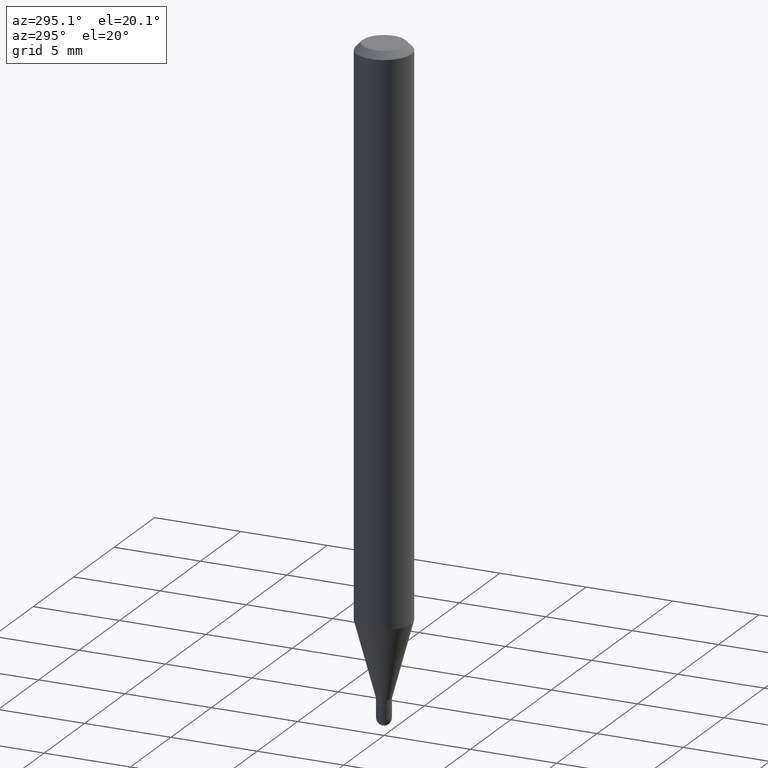
[diagram: clean part render]
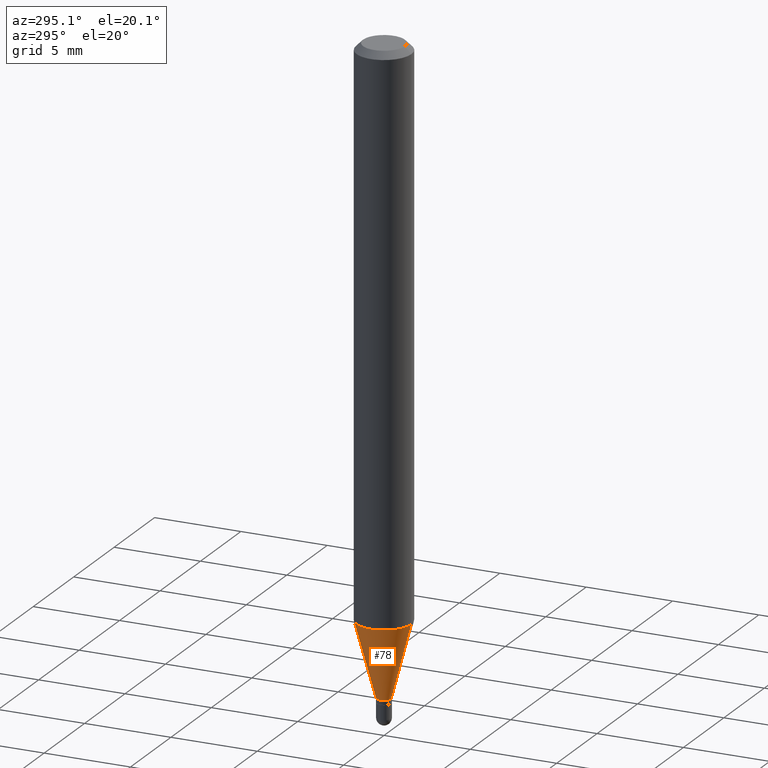
[diagram: same view with one face highlighted and labeled with its STEP entity id]
A machine part, auxiliary view. The second image highlights one B-rep face of the part: STEP entity #78.
In plain terms, the highlighted conical surface has half-angle 15 deg.
Its self-contained STEP definition (entity closure, byte-faithful):
#10 = CARTESIAN_POINT ( 'NONE',  ( 2.806643806252725111E-16, 0.01649999999999489375, -1.440000000000000169 ) ) ;
#13 = ORIENTED_EDGE ( 'NONE', *, *, #111, .F. ) ;
#35 = DIRECTION ( 'NONE',  ( 1.839019923739605048E-15, 0.2588190451025256245, 0.9659258262890669799 ) ) ;
#44 = EDGE_CURVE ( 'NONE', #450, #412, #328, .T. ) ;
#65 = DIRECTION ( 'NONE',  ( -2.445479794674199112E-29, 3.491465602701382301E-15, 1.000000000000000000 ) ) ;
#66 = LINE ( 'NONE', #390, #337 ) ;
#68 = EDGE_CURVE ( 'NONE', #450, #102, #66, .T. ) ;
#78 = ADVANCED_FACE ( 'NONE', ( #223 ), #499, .T. ) ;
#88 = VERTEX_POINT ( 'NONE', #418 ) ;
#102 = VERTEX_POINT ( 'NONE', #422 ) ;
#107 = CIRCLE ( 'NONE', #191, 0.06250000000000000000 ) ;
#111 = EDGE_CURVE ( 'NONE', #102, #88, #107, .T. ) ;
#154 = CARTESIAN_POINT ( 'NONE',  ( 3.101664781570917054E-29, -4.428315424870604109E-15, -1.268325662851832680 ) ) ;
#173 = CARTESIAN_POINT ( 'NONE',  ( -1.152188841817876318E-16, -0.01650000000000495168, -1.440000000000000169 ) ) ;
#178 = ORIENTED_EDGE ( 'NONE', *, *, #68, .F. ) ;
#180 = AXIS2_PLACEMENT_3D ( 'NONE', #503, #233, #264 ) ;
#191 = AXIS2_PLACEMENT_3D ( 'NONE', #154, #65, #502 ) ;
#192 = VECTOR ( 'NONE', #330, 39.37007874015748854 ) ;
#223 = FACE_OUTER_BOUND ( 'NONE', #327, .T. ) ;
#233 = DIRECTION ( 'NONE',  ( -2.445479794674199112E-29, 3.491465602701382301E-15, 1.000000000000000000 ) ) ;
#252 = ORIENTED_EDGE ( 'NONE', *, *, #44, .T. ) ;
#264 = DIRECTION ( 'NONE',  ( -6.982962677686265922E-15, -1.000000000000000000, 0.000000000000000000 ) ) ;
#269 = DIRECTION ( 'NONE',  ( -6.982962677686265922E-15, -1.000000000000000000, 0.000000000000000000 ) ) ;
#308 = AXIS2_PLACEMENT_3D ( 'NONE', #506, #383, #269 ) ;
#326 = LINE ( 'NONE', #335, #192 ) ;
#327 = EDGE_LOOP ( 'NONE', ( #178, #252, #395, #13 ) ) ;
#328 = CIRCLE ( 'NONE', #180, 0.01649999999999992445 ) ;
#330 = DIRECTION ( 'NONE',  ( -1.807323732225334872E-15, -0.2588190451025188521, 0.9659258262890687563 ) ) ;
#335 = CARTESIAN_POINT ( 'NONE',  ( -1.152188841817876318E-16, -0.01650000000000495168, -1.440000000000000169 ) ) ;
#337 = VECTOR ( 'NONE', #35, 39.37007874015748143 ) ;
#383 = DIRECTION ( 'NONE',  ( -2.445479794674199112E-29, 3.491465602701382301E-15, 1.000000000000000000 ) ) ;
#390 = CARTESIAN_POINT ( 'NONE',  ( 1.172395514004511721E-16, 0.01649999999999489375, -1.440000000000000169 ) ) ;
#395 = ORIENTED_EDGE ( 'NONE', *, *, #449, .T. ) ;
#412 = VERTEX_POINT ( 'NONE', #173 ) ;
#418 = CARTESIAN_POINT ( 'NONE',  ( -4.364351673553608052E-16, -0.06250000000000444089, -1.268325662851832236 ) ) ;
#422 = CARTESIAN_POINT ( 'NONE',  ( 4.440892098500933817E-16, 0.06249999999999555911, -1.268325662851832902 ) ) ;
#449 = EDGE_CURVE ( 'NONE', #412, #88, #326, .T. ) ;
#450 = VERTEX_POINT ( 'NONE', #10 ) ;
#499 = CONICAL_SURFACE ( 'NONE', #308, 0.01649999999999992445, 0.2617993877991509621 ) ;
#502 = DIRECTION ( 'NONE',  ( -6.982962677686265922E-15, -1.000000000000000000, 4.370956789862821150E-15 ) ) ;
#503 = CARTESIAN_POINT ( 'NONE',  ( 3.521490904330847641E-29, -5.027710467889990861E-15, -1.440000000000000169 ) ) ;
#506 = CARTESIAN_POINT ( 'NONE',  ( 3.521490904330847641E-29, -5.027710467889990861E-15, -1.440000000000000169 ) ) ;